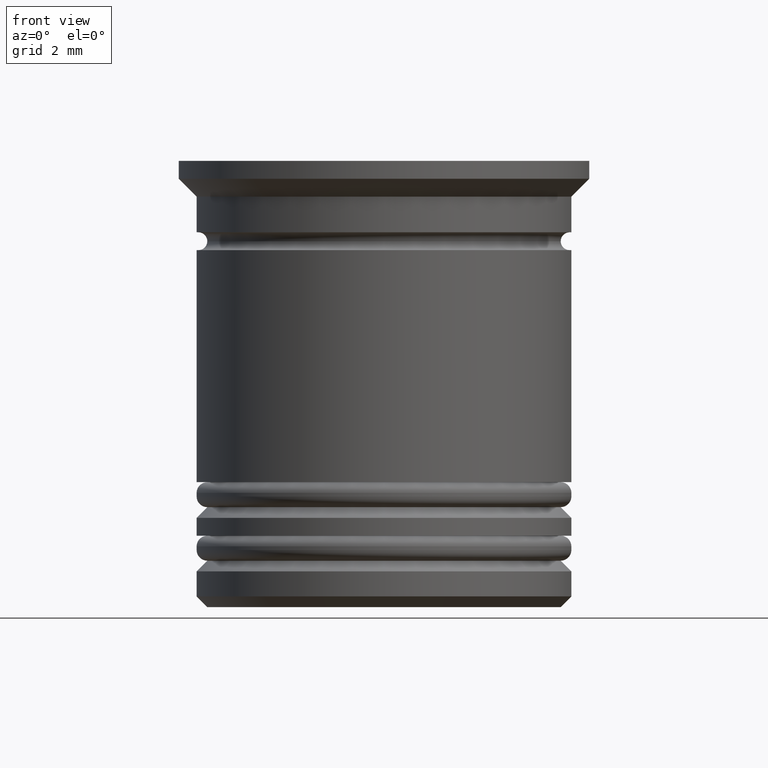
[diagram: clean part render]
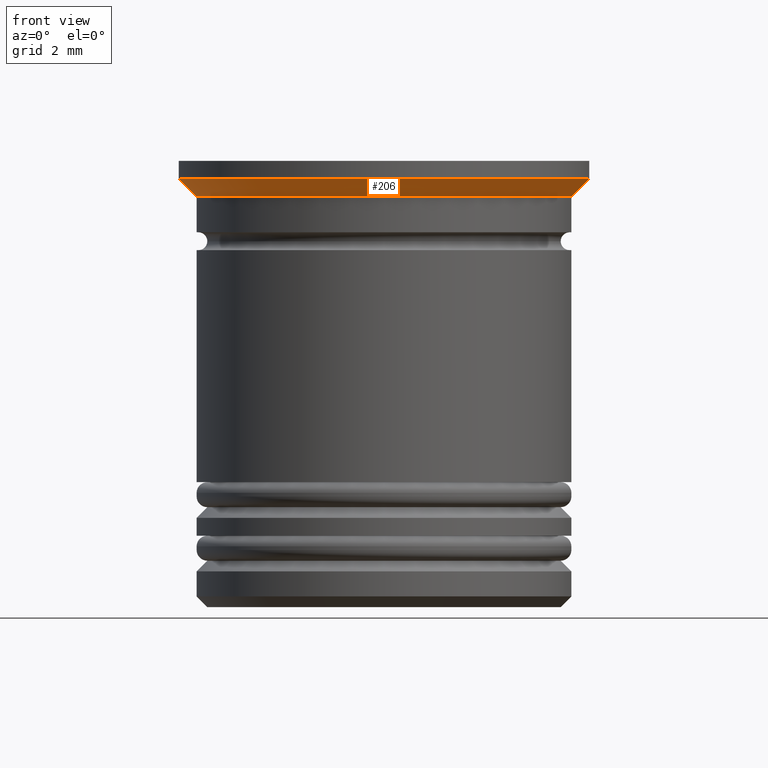
[diagram: same view with one face highlighted and labeled with its STEP entity id]
A machine part, front view. The second image highlights one B-rep face of the part: STEP entity #206.
In plain terms, the highlighted conical surface has half-angle 45 deg.
Its self-contained STEP definition (entity closure, byte-faithful):
#19 = EDGE_CURVE ( 'NONE', #1121, #94, #1347, .T. ) ;
#24 = VECTOR ( 'NONE', #305, 1000.000000000000000 ) ;
#55 = AXIS2_PLACEMENT_3D ( 'NONE', #332, #652, #1764 ) ;
#84 = CONICAL_SURFACE ( 'NONE', #1175, 5.750000000000000000, 0.7853981633974509435 ) ;
#94 = VERTEX_POINT ( 'NONE', #1135 ) ;
#127 = CARTESIAN_POINT ( 'NONE',  ( 0.000000000000000000, 0.000000000000000000, -0.4999999999999982792 ) ) ;
#175 = DIRECTION ( 'NONE',  ( -0.000000000000000000, -0.000000000000000000, 1.000000000000000000 ) ) ;
#206 = ADVANCED_FACE ( 'NONE', ( #1363 ), #84, .T. ) ;
#272 = DIRECTION ( 'NONE',  ( 0.7071067811865493491, 0.000000000000000000, 0.7071067811865456854 ) ) ;
#305 = DIRECTION ( 'NONE',  ( -0.7071067811865493491, 8.659560562354955045E-17, 0.7071067811865456854 ) ) ;
#332 = CARTESIAN_POINT ( 'NONE',  ( 0.000000000000000000, 0.000000000000000000, -0.9999999999999997780 ) ) ;
#407 = ORIENTED_EDGE ( 'NONE', *, *, #940, .T. ) ;
#419 = VECTOR ( 'NONE', #272, 1000.000000000000000 ) ;
#468 = CARTESIAN_POINT ( 'NONE',  ( 5.750000000000000000, 0.000000000000000000, -0.4999999999999982792 ) ) ;
#487 = CARTESIAN_POINT ( 'NONE',  ( -5.750000000000000000, 7.041719095097280880E-16, -0.4999999999999982792 ) ) ;
#491 = CARTESIAN_POINT ( 'NONE',  ( -5.750000000000000000, 7.041719095097280880E-16, -0.4999999999999982792 ) ) ;
#652 = DIRECTION ( 'NONE',  ( -0.000000000000000000, -0.000000000000000000, 1.000000000000000000 ) ) ;
#667 = ORIENTED_EDGE ( 'NONE', *, *, #19, .T. ) ;
#795 = DIRECTION ( 'NONE',  ( -1.000000000000000000, 0.000000000000000000, 0.000000000000000000 ) ) ;
#796 = CIRCLE ( 'NONE', #55, 5.249999999999999112 ) ;
#835 = AXIS2_PLACEMENT_3D ( 'NONE', #1858, #175, #795 ) ;
#862 = CARTESIAN_POINT ( 'NONE',  ( -5.249999999999999112, 6.429395695523603167E-16, -0.9999999999999997780 ) ) ;
#940 = EDGE_CURVE ( 'NONE', #1058, #1121, #796, .T. ) ;
#997 = ORIENTED_EDGE ( 'NONE', *, *, #1674, .F. ) ;
#1019 = CARTESIAN_POINT ( 'NONE',  ( 5.249999999999999112, 0.000000000000000000, -0.9999999999999997780 ) ) ;
#1045 = DIRECTION ( 'NONE',  ( -0.000000000000000000, -0.000000000000000000, 1.000000000000000000 ) ) ;
#1058 = VERTEX_POINT ( 'NONE', #862 ) ;
#1121 = VERTEX_POINT ( 'NONE', #1019 ) ;
#1135 = CARTESIAN_POINT ( 'NONE',  ( 5.750000000000000000, 0.000000000000000000, -0.4999999999999982792 ) ) ;
#1175 = AXIS2_PLACEMENT_3D ( 'NONE', #127, #1045, #1228 ) ;
#1228 = DIRECTION ( 'NONE',  ( 1.000000000000000000, 0.000000000000000000, 0.000000000000000000 ) ) ;
#1252 = LINE ( 'NONE', #487, #24 ) ;
#1278 = ORIENTED_EDGE ( 'NONE', *, *, #1285, .F. ) ;
#1285 = EDGE_CURVE ( 'NONE', #1556, #94, #1684, .T. ) ;
#1347 = LINE ( 'NONE', #468, #419 ) ;
#1363 = FACE_OUTER_BOUND ( 'NONE', #1552, .T. ) ;
#1552 = EDGE_LOOP ( 'NONE', ( #997, #407, #667, #1278 ) ) ;
#1556 = VERTEX_POINT ( 'NONE', #491 ) ;
#1674 = EDGE_CURVE ( 'NONE', #1058, #1556, #1252, .T. ) ;
#1684 = CIRCLE ( 'NONE', #835, 5.750000000000000000 ) ;
#1764 = DIRECTION ( 'NONE',  ( 1.000000000000000000, 0.000000000000000000, 0.000000000000000000 ) ) ;
#1858 = CARTESIAN_POINT ( 'NONE',  ( 0.000000000000000000, 0.000000000000000000, -0.4999999999999982792 ) ) ;